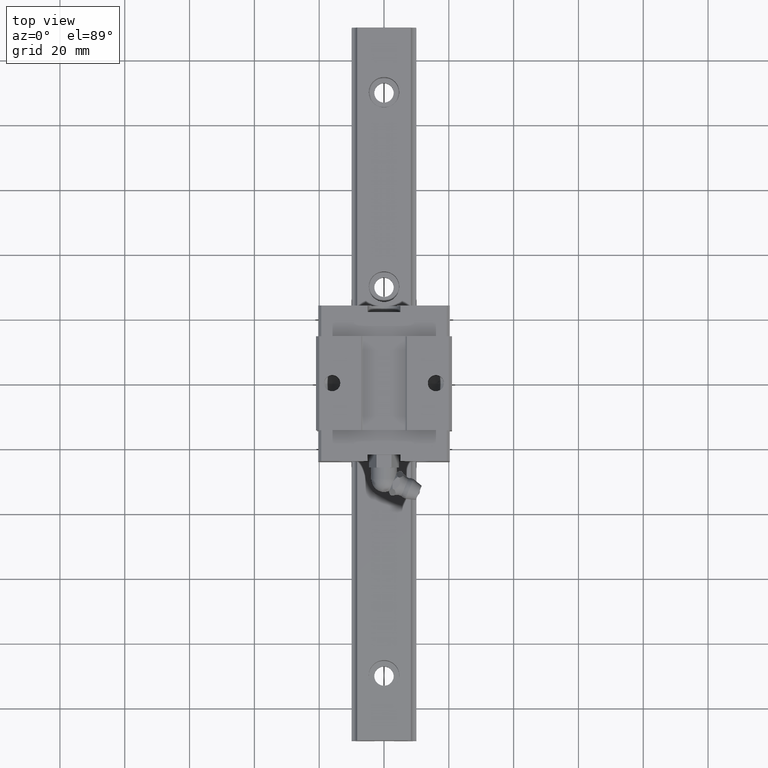
[diagram: clean part render]
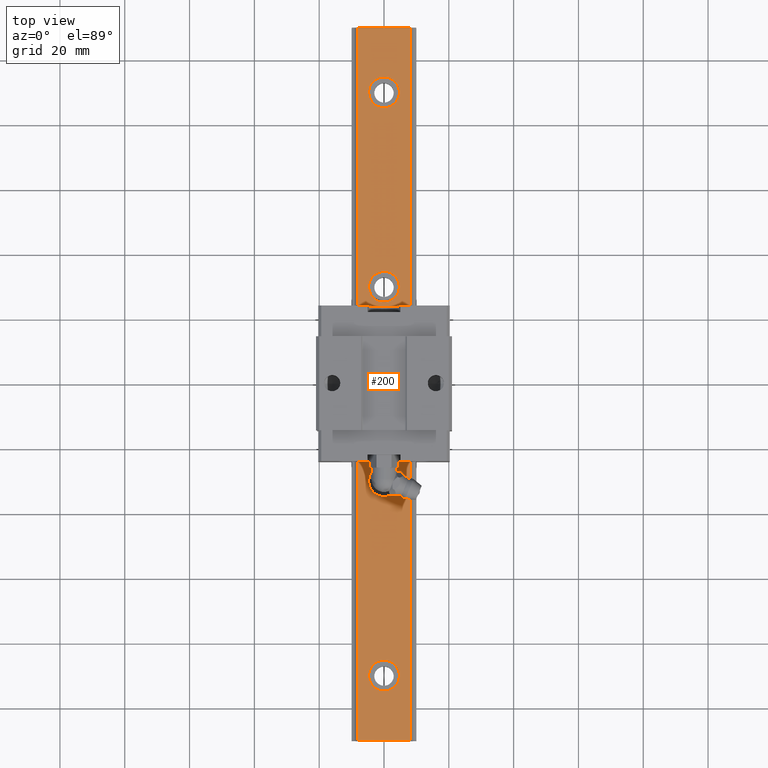
[diagram: same view with one face highlighted and labeled with its STEP entity id]
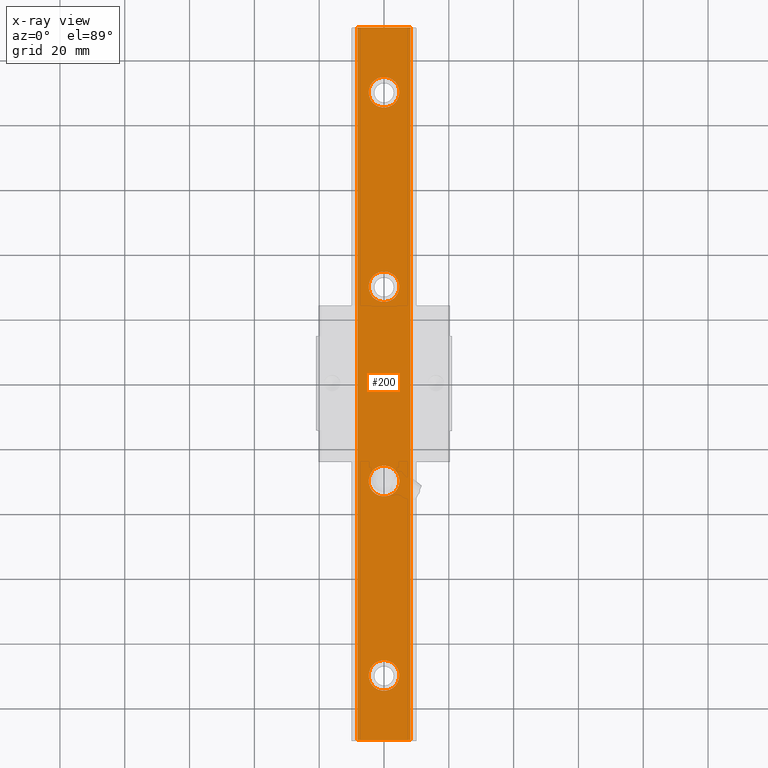
[diagram: x-ray of the same camera — body ghosted, the highlighted face saturated]
A machine part, top view. The second image highlights one B-rep face of the part: STEP entity #200.
The next image is the same camera in x-ray: the body ghosted, the highlighted face saturated — about 0% of this face is hidden behind the body in this view.
In plain terms, the highlighted planar face has unit normal (0, 0, -1).
Its self-contained STEP definition (entity closure, byte-faithful):
#200=ADVANCED_FACE('',(#415,#416,#417,#418,#419),#420,.F.);
#415=FACE_OUTER_BOUND('',#801,.T.);
#416=FACE_BOUND('',#802,.T.);
#417=FACE_BOUND('',#803,.T.);
#418=FACE_BOUND('',#804,.T.);
#419=FACE_BOUND('',#805,.T.);
#420=PLANE('',#806);
#801=EDGE_LOOP('',(#1451,#1452,#1453,#1454));
#802=EDGE_LOOP('',(#1455,#1456));
#803=EDGE_LOOP('',(#1457,#1458));
#804=EDGE_LOOP('',(#1459,#1460));
#805=EDGE_LOOP('',(#1461,#1462));
#806=AXIS2_PLACEMENT_3D('',#1463,#1464,#1465);
#1451=ORIENTED_EDGE('',*,*,#2790,.T.);
#1452=ORIENTED_EDGE('',*,*,#2841,.F.);
#1453=ORIENTED_EDGE('',*,*,#2842,.T.);
#1454=ORIENTED_EDGE('',*,*,#2808,.T.);
#1455=ORIENTED_EDGE('',*,*,#2831,.T.);
#1456=ORIENTED_EDGE('',*,*,#2717,.T.);
#1457=ORIENTED_EDGE('',*,*,#2765,.T.);
#1458=ORIENTED_EDGE('',*,*,#2747,.T.);
#1459=ORIENTED_EDGE('',*,*,#2807,.T.);
#1460=ORIENTED_EDGE('',*,*,#2727,.T.);
#1461=ORIENTED_EDGE('',*,*,#2805,.T.);
#1462=ORIENTED_EDGE('',*,*,#2731,.T.);
#1463=CARTESIAN_POINT('',(0.0,110.0,14.400009));
#1464=DIRECTION('',(0.0,0.0,-1.0));
#1465=DIRECTION('',(0.0,-1.0,0.0));
#2717=EDGE_CURVE('',#3206,#3203,#3207,.T.);
#2727=EDGE_CURVE('',#3226,#3223,#3227,.T.);
#2731=EDGE_CURVE('',#3234,#3231,#3235,.T.);
#2747=EDGE_CURVE('',#3266,#3263,#3267,.T.);
#2765=EDGE_CURVE('',#3263,#3266,#3298,.T.);
#2790=EDGE_CURVE('',#3345,#3343,#3346,.T.);
#2805=EDGE_CURVE('',#3231,#3234,#3370,.T.);
#2807=EDGE_CURVE('',#3223,#3226,#3372,.T.);
#2808=EDGE_CURVE('',#3373,#3345,#3374,.T.);
#2831=EDGE_CURVE('',#3203,#3206,#3407,.T.);
#2841=EDGE_CURVE('',#3422,#3343,#3423,.T.);
#2842=EDGE_CURVE('',#3422,#3373,#3424,.T.);
#3203=VERTEX_POINT('',#4009);
#3206=VERTEX_POINT('',#4013);
#3207=CIRCLE('',#4014,4.75);
#3223=VERTEX_POINT('',#4033);
#3226=VERTEX_POINT('',#4037);
#3227=CIRCLE('',#4038,4.75);
#3231=VERTEX_POINT('',#4043);
#3234=VERTEX_POINT('',#4047);
#3235=CIRCLE('',#4048,4.75);
#3263=VERTEX_POINT('',#4081);
#3266=VERTEX_POINT('',#4085);
#3267=CIRCLE('',#4086,4.75);
#3298=CIRCLE('',#4124,4.75);
#3343=VERTEX_POINT('',#4186);
#3345=VERTEX_POINT('',#4189);
#3346=LINE('',#4190,#4191);
#3370=CIRCLE('',#4221,4.75);
#3372=CIRCLE('',#4223,4.75);
#3373=VERTEX_POINT('',#4224);
#3374=LINE('',#4225,#4226);
#3407=CIRCLE('',#4276,4.75);
#3422=VERTEX_POINT('',#4299);
#3423=LINE('',#4300,#4301);
#3424=LINE('',#4302,#4303);
#4009=CARTESIAN_POINT('',(-4.75,90.0,14.400009));
#4013=CARTESIAN_POINT('',(4.75,90.0,14.400009));
#4014=AXIS2_PLACEMENT_3D('',#5306,#5307,#5308);
#4033=CARTESIAN_POINT('',(-4.75,-30.0,14.400009));
#4037=CARTESIAN_POINT('',(4.75,-30.0,14.400009));
#4038=AXIS2_PLACEMENT_3D('',#5328,#5329,#5330);
#4043=CARTESIAN_POINT('',(-4.75,-90.0,14.400009));
#4047=CARTESIAN_POINT('',(4.75,-90.0,14.400009));
#4048=AXIS2_PLACEMENT_3D('',#5336,#5337,#5338);
#4081=CARTESIAN_POINT('',(-4.75,30.0,14.400009));
#4085=CARTESIAN_POINT('',(4.75,30.0,14.400009));
#4086=AXIS2_PLACEMENT_3D('',#5372,#5373,#5374);
#4124=AXIS2_PLACEMENT_3D('',#5412,#5413,#5414);
#4186=CARTESIAN_POINT('',(8.2039487758,-110.0,14.400009));
#4189=CARTESIAN_POINT('',(-8.2039487758,-110.0,14.400009));
#4190=CARTESIAN_POINT('',(10.1449012806,-110.0,14.400009));
#4191=VECTOR('',#5451,1000.0);
#4221=AXIS2_PLACEMENT_3D('',#5482,#5483,#5484);
#4223=AXIS2_PLACEMENT_3D('',#5488,#5489,#5490);
#4224=CARTESIAN_POINT('',(-8.2039487758,110.0,14.400009));
#4225=CARTESIAN_POINT('',(-8.2039487758,110.0,14.400009));
#4226=VECTOR('',#5491,1000.0);
#4276=AXIS2_PLACEMENT_3D('',#5524,#5525,#5526);
#4299=CARTESIAN_POINT('',(8.2039487758,110.0,14.400009));
#4300=CARTESIAN_POINT('',(8.2039487758,110.0,14.400009));
#4301=VECTOR('',#5538,1000.0);
#4302=CARTESIAN_POINT('',(0.0,110.0,14.400009));
#4303=VECTOR('',#5539,1000.0);
#5306=CARTESIAN_POINT('',(8.13151629364128E-016,90.0,14.400009));
#5307=DIRECTION('',(0.0,0.0,-1.0));
#5308=DIRECTION('',(-1.0,0.0,0.0));
#5328=CARTESIAN_POINT('',(8.13151629364128E-016,-30.0,14.400009));
#5329=DIRECTION('',(0.0,0.0,-1.0));
#5330=DIRECTION('',(-1.0,0.0,0.0));
#5336=CARTESIAN_POINT('',(8.13151629364128E-016,-90.0,14.400009));
#5337=DIRECTION('',(0.0,0.0,-1.0));
#5338=DIRECTION('',(-1.0,0.0,0.0));
#5372=CARTESIAN_POINT('',(8.13151629364128E-016,30.0,14.400009));
#5373=DIRECTION('',(0.0,0.0,-1.0));
#5374=DIRECTION('',(-1.0,0.0,0.0));
#5412=CARTESIAN_POINT('',(8.13151629364128E-016,30.0,14.400009));
#5413=DIRECTION('',(0.0,0.0,-1.0));
#5414=DIRECTION('',(-1.0,0.0,0.0));
#5451=DIRECTION('',(1.0,0.0,0.0));
#5482=CARTESIAN_POINT('',(8.13151629364128E-016,-90.0,14.400009));
#5483=DIRECTION('',(0.0,0.0,-1.0));
#5484=DIRECTION('',(-1.0,0.0,0.0));
#5488=CARTESIAN_POINT('',(8.13151629364128E-016,-30.0,14.400009));
#5489=DIRECTION('',(0.0,0.0,-1.0));
#5490=DIRECTION('',(-1.0,0.0,0.0));
#5491=DIRECTION('',(0.0,-1.0,0.0));
#5524=CARTESIAN_POINT('',(8.13151629364128E-016,90.0,14.400009));
#5525=DIRECTION('',(0.0,0.0,-1.0));
#5526=DIRECTION('',(-1.0,0.0,0.0));
#5538=DIRECTION('',(0.0,-1.0,0.0));
#5539=DIRECTION('',(-1.0,0.0,0.0));